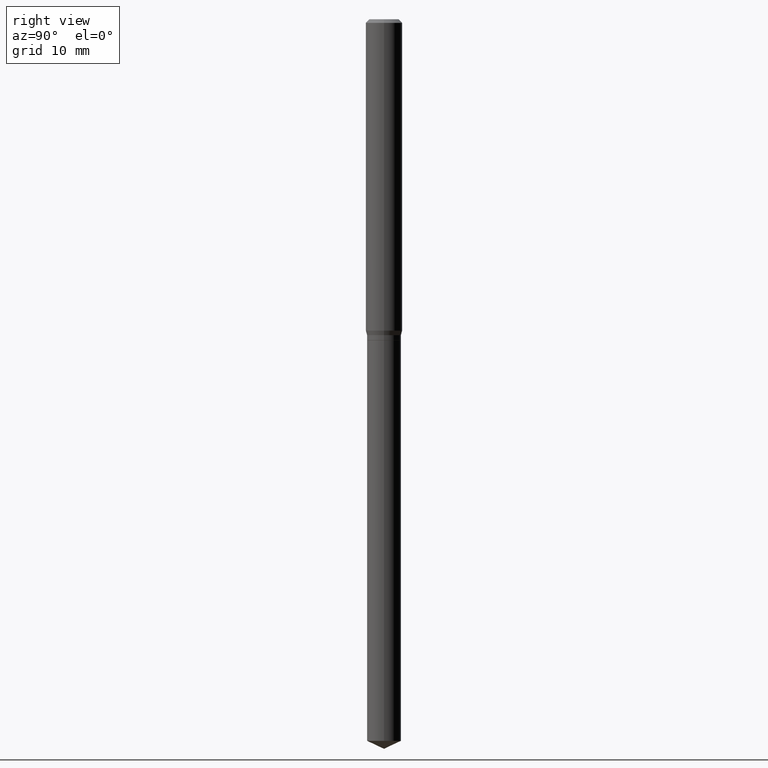
[diagram: clean part render]
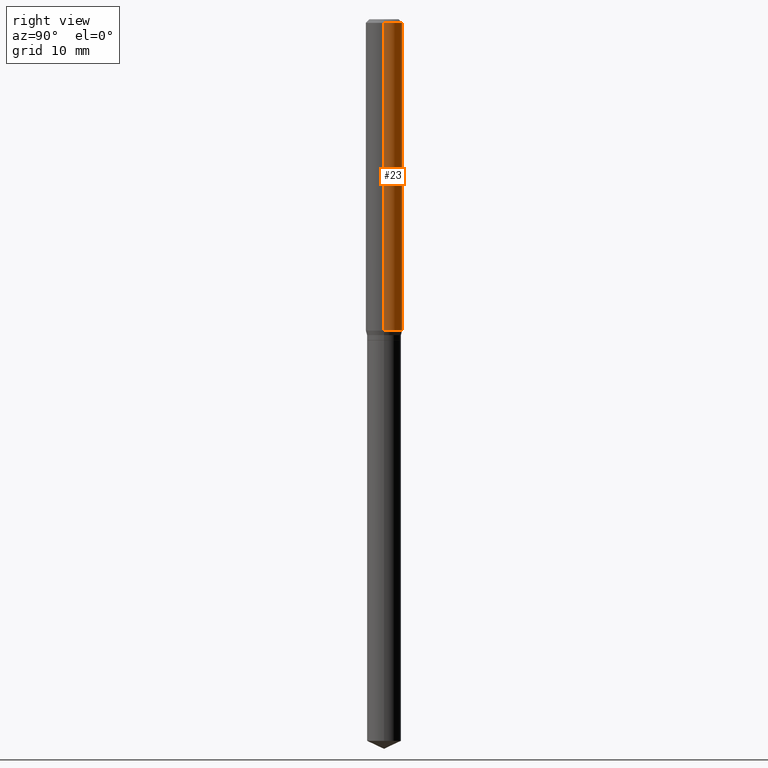
[diagram: same view with one face highlighted and labeled with its STEP entity id]
A machine part, right view. The second image highlights one B-rep face of the part: STEP entity #23.
In plain terms, the highlighted cylindrical surface (edge-blend (fillet) strip) has radius 1.4999 mm, axis along (-0, 0, 1).
Its self-contained STEP definition (entity closure, byte-faithful):
#23 = ADVANCED_FACE ( 'NONE', ( #331 ), #486, .T. ) ;
#51 = VECTOR ( 'NONE', #222, 39.37007874015748143 ) ;
#69 = CARTESIAN_POINT ( 'NONE',  ( -0.05905000000000006077, 4.195754854663395916E-16, -2.904631170795524694E-30 ) ) ;
#80 = EDGE_CURVE ( 'NONE', #352, #402, #457, .T. ) ;
#91 = EDGE_LOOP ( 'NONE', ( #394, #179, #209, #478 ) ) ;
#98 = CARTESIAN_POINT ( 'NONE',  ( -0.05905000000000011628, -3.100390752322860238E-15, -1.008158399310102649 ) ) ;
#111 = AXIS2_PLACEMENT_3D ( 'NONE', #371, #448, #453 ) ;
#127 = EDGE_CURVE ( 'NONE', #318, #402, #447, .T. ) ;
#144 = EDGE_CURVE ( 'NONE', #208, #318, #200, .T. ) ;
#150 = CARTESIAN_POINT ( 'NONE',  ( 2.888098660104663766E-31, -4.123439461173779647E-17, -0.01181000000000007044 ) ) ;
#179 = ORIENTED_EDGE ( 'NONE', *, *, #127, .T. ) ;
#200 = CIRCLE ( 'NONE', #273, 0.05905000000000011628 ) ;
#208 = VERTEX_POINT ( 'NONE', #468 ) ;
#209 = ORIENTED_EDGE ( 'NONE', *, *, #80, .F. ) ;
#214 = CARTESIAN_POINT ( 'NONE',  ( 0.05905000000000006077, -4.123439461173744764E-16, 2.879382386107503023E-30 ) ) ;
#218 = LINE ( 'NONE', #214, #449 ) ;
#221 = DIRECTION ( 'NONE',  ( -2.445468806185136877E-29, 3.491481338843145188E-15, 1.000000000000000000 ) ) ;
#222 = DIRECTION ( 'NONE',  ( -2.445468806185136877E-29, 3.491481338843145188E-15, 1.000000000000000000 ) ) ;
#234 = AXIS2_PLACEMENT_3D ( 'NONE', #150, #254, #487 ) ;
#254 = DIRECTION ( 'NONE',  ( -2.445468806185136597E-29, 3.491481338843145583E-15, 1.000000000000000000 ) ) ;
#273 = AXIS2_PLACEMENT_3D ( 'NONE', #415, #461, #332 ) ;
#318 = VERTEX_POINT ( 'NONE', #98 ) ;
#331 = FACE_OUTER_BOUND ( 'NONE', #91, .T. ) ;
#332 = DIRECTION ( 'NONE',  ( 1.000000000000000000, -6.982962677686266711E-15, 0.000000000000000000 ) ) ;
#352 = VERTEX_POINT ( 'NONE', #446 ) ;
#371 = CARTESIAN_POINT ( 'NONE',  ( 0.000000000000000000, 0.000000000000000000, 0.000000000000000000 ) ) ;
#394 = ORIENTED_EDGE ( 'NONE', *, *, #144, .T. ) ;
#402 = VERTEX_POINT ( 'NONE', #405 ) ;
#405 = CARTESIAN_POINT ( 'NONE',  ( -0.05904999999999999832, -1.361024830734128448E-15, -0.01181000000000007044 ) ) ;
#413 = EDGE_CURVE ( 'NONE', #208, #352, #218, .T. ) ;
#415 = CARTESIAN_POINT ( 'NONE',  ( 2.465419917206395348E-29, -3.519966237789199731E-15, -1.008158399310102649 ) ) ;
#446 = CARTESIAN_POINT ( 'NONE',  ( 0.05904999999999999832, -4.535783407291118600E-16, -0.01181000000000007044 ) ) ;
#447 = LINE ( 'NONE', #69, #51 ) ;
#448 = DIRECTION ( 'NONE',  ( -2.445468806185136597E-29, 3.491481338843145583E-15, 1.000000000000000000 ) ) ;
#449 = VECTOR ( 'NONE', #221, 39.37007874015748143 ) ;
#453 = DIRECTION ( 'NONE',  ( 1.000000000000000000, -6.982962677686266711E-15, 4.876176775795935793E-29 ) ) ;
#457 = CIRCLE ( 'NONE', #234, 0.05904999999999999832 ) ;
#461 = DIRECTION ( 'NONE',  ( -2.445468806185136597E-29, 3.491481338843145583E-15, 1.000000000000000000 ) ) ;
#468 = CARTESIAN_POINT ( 'NONE',  ( 0.05905000000000011628, -3.932310183906575045E-15, -1.008158399310102649 ) ) ;
#478 = ORIENTED_EDGE ( 'NONE', *, *, #413, .F. ) ;
#486 = CYLINDRICAL_SURFACE ( 'NONE', #111, 0.05905000000000006077 ) ;
#487 = DIRECTION ( 'NONE',  ( 1.000000000000000000, -6.982962677686266711E-15, 0.000000000000000000 ) ) ;